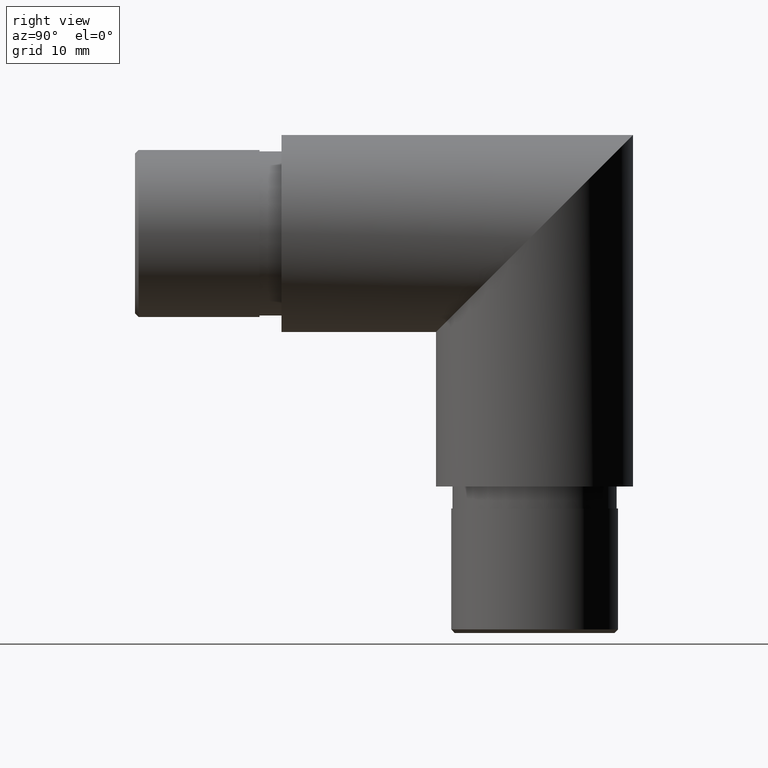
[diagram: clean part render]
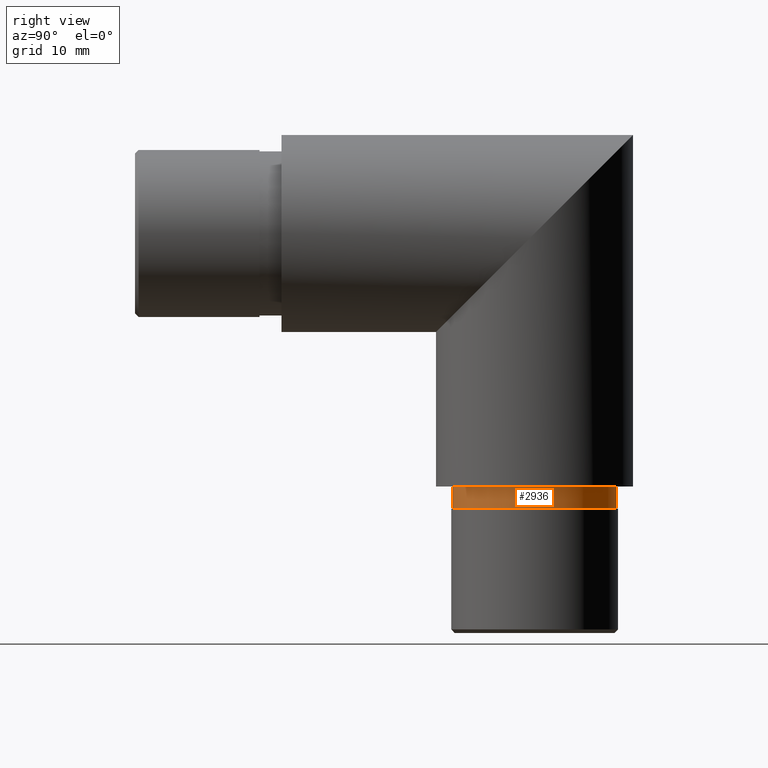
[diagram: same view with one face highlighted and labeled with its STEP entity id]
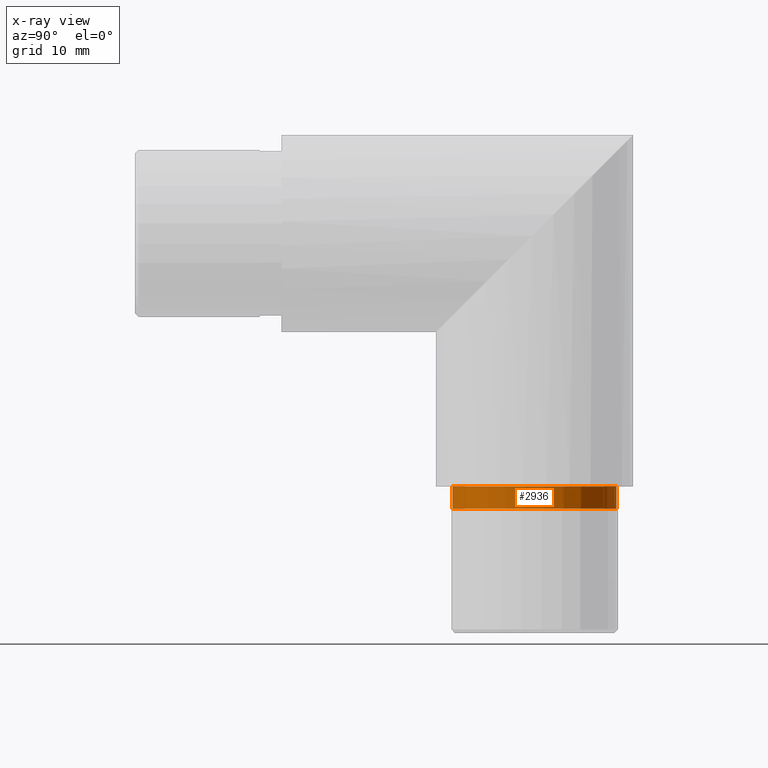
[diagram: x-ray of the same camera — body ghosted, the highlighted face saturated]
A machine part, right view. The second image highlights one B-rep face of the part: STEP entity #2936.
The next image is the same camera in x-ray: the body ghosted, the highlighted face saturated — about 0% of this face is hidden behind the body in this view.
In plain terms, the highlighted cylindrical surface (bore or boss wall) has radius 11.2 mm, axis along (-0, 0, 1).
Its self-contained STEP definition (entity closure, byte-faithful):
#247 = DIRECTION ( 'NONE',  ( 0.0000000000000000000, -3.441691376337984500E-015, -1.000000000000000000 ) ) ;
#439 = ORIENTED_EDGE ( 'NONE', *, *, #9906, .T. ) ;
#994 = DIRECTION ( 'NONE',  ( 0.0000000000000000000, 1.000000000000000000, -3.717264591378872000E-015 ) ) ;
#1824 = EDGE_CURVE ( 'NONE', #4049, #4049, #5380, .T. ) ;
#2606 = FACE_OUTER_BOUND ( 'NONE', #10208, .T. ) ;
#2624 = DIRECTION ( 'NONE',  ( -0.0000000000000000000, 3.441691376337984500E-015, 1.000000000000000000 ) ) ;
#2936 = ADVANCED_FACE ( 'NONE', ( #10554, #2606 ), #5106, .T. ) ;
#3054 = AXIS2_PLACEMENT_3D ( 'NONE', #11584, #247, #6901 ) ;
#4049 = VERTEX_POINT ( 'NONE', #4881 ) ;
#4344 = AXIS2_PLACEMENT_3D ( 'NONE', #12110, #2624, #10111 ) ;
#4881 = CARTESIAN_POINT ( 'NONE',  ( 0.0000000000000000000, 45.74999999999987200, -37.55000000000003300 ) ) ;
#5106 = CYLINDRICAL_SURFACE ( 'NONE', #4344, 11.20000000000000100 ) ;
#5380 = CIRCLE ( 'NONE', #7332, 11.20000000000000100 ) ;
#5717 = DIRECTION ( 'NONE',  ( 0.0000000000000000000, -3.441691376337984500E-015, -1.000000000000000000 ) ) ;
#5863 = CARTESIAN_POINT ( 'NONE',  ( 0.0000000000000000000, 45.74999999999987900, -34.55000000000003300 ) ) ;
#6539 = VERTEX_POINT ( 'NONE', #5863 ) ;
#6612 = CARTESIAN_POINT ( 'NONE',  ( 0.0000000000000000000, 34.54999999999986900, -37.54999999999999000 ) ) ;
#6901 = DIRECTION ( 'NONE',  ( 0.0000000000000000000, 1.000000000000000000, -3.717264591378872000E-015 ) ) ;
#7332 = AXIS2_PLACEMENT_3D ( 'NONE', #6612, #5717, #994 ) ;
#9906 = EDGE_CURVE ( 'NONE', #6539, #6539, #10053, .T. ) ;
#10053 = CIRCLE ( 'NONE', #3054, 11.20000000000000100 ) ;
#10111 = DIRECTION ( 'NONE',  ( 0.0000000000000000000, -1.000000000000000000, 3.717264591378872000E-015 ) ) ;
#10208 = EDGE_LOOP ( 'NONE', ( #439 ) ) ;
#10554 = FACE_OUTER_BOUND ( 'NONE', #11775, .T. ) ;
#10629 = ORIENTED_EDGE ( 'NONE', *, *, #1824, .F. ) ;
#11584 = CARTESIAN_POINT ( 'NONE',  ( 0.0000000000000000000, 34.54999999999987600, -34.54999999999999000 ) ) ;
#11775 = EDGE_LOOP ( 'NONE', ( #10629 ) ) ;
#12110 = CARTESIAN_POINT ( 'NONE',  ( 0.0000000000000000000, 34.54999999999986900, -37.54999999999999000 ) ) ;